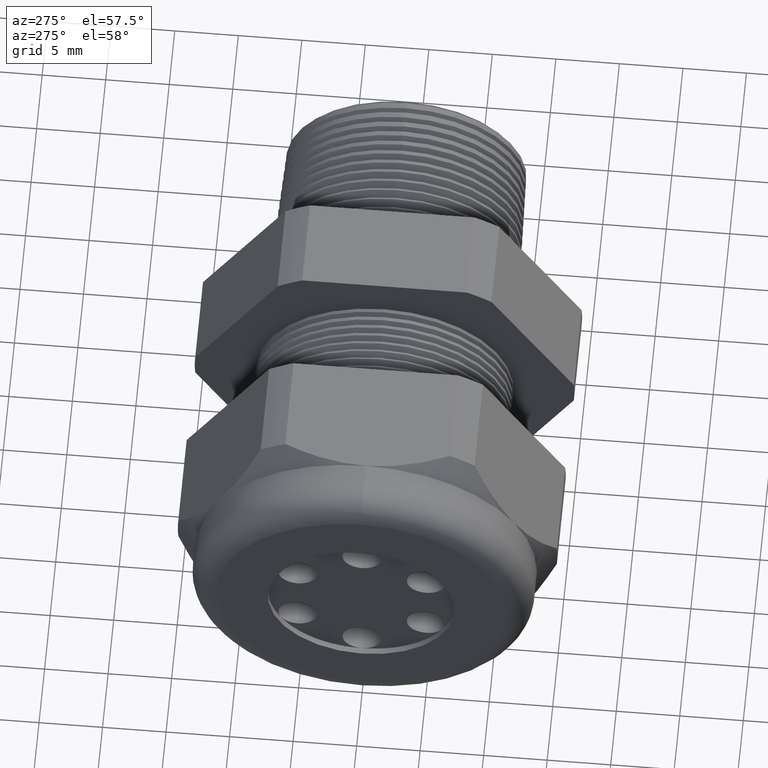
[diagram: clean part render]
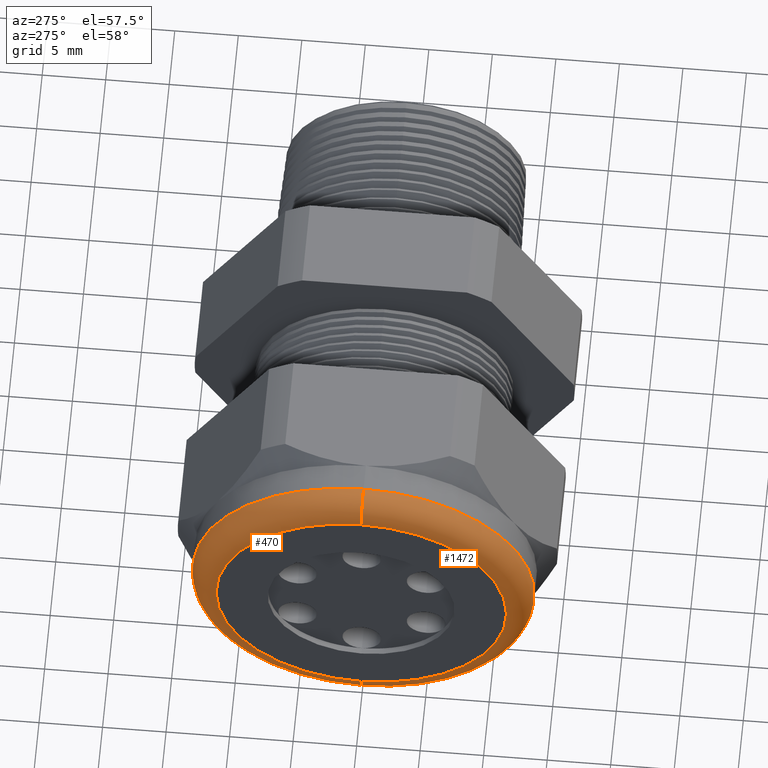
[diagram: same view with one multi-face feature highlighted, each face labeled with its STEP entity id]
A machine part, auxiliary view. The highlighted faces form ONE feature: a constant-radius fillet chain: 2 tangent blend faces with common blend radius 2.032 mm. The faces share edges in the B-rep.
Their STEP definitions:
[1] entity #1472 (Torus):
#474 = VERTEX_POINT ( 'NONE', #2863 ) ;
#529 = VERTEX_POINT ( 'NONE', #3009 ) ;
#531 = EDGE_CURVE ( 'NONE', #474, #532, #3007, .T. ) ;
#532 = VERTEX_POINT ( 'NONE', #3002 ) ;
#535 = VERTEX_POINT ( 'NONE', #2996 ) ;
#537 = EDGE_CURVE ( 'NONE', #529, #535, #2994, .T. ) ;
#1186 = EDGE_CURVE ( 'NONE', #532, #535, #4312, .T. ) ;
#1200 = EDGE_CURVE ( 'NONE', #529, #474, #4349, .T. ) ;
#1472 = ADVANCED_FACE ( 'NONE', ( #4783 ), #4782, .T. ) ;
#1473 = EDGE_LOOP ( 'NONE', ( #1525, #1526, #1527, #1528 ) ) ;
#1525 = ORIENTED_EDGE ( 'NONE', *, *, #531, .F. ) ;
#1526 = ORIENTED_EDGE ( 'NONE', *, *, #1200, .F. ) ;
#1527 = ORIENTED_EDGE ( 'NONE', *, *, #537, .T. ) ;
#1528 = ORIENTED_EDGE ( 'NONE', *, *, #1186, .F. ) ;
#2863 = CARTESIAN_POINT ( 'NONE',  ( -1.330000000000000100, 0.0000000000000000000, -0.5300000000000001400 ) ) ;
#2990 = DIRECTION ( 'NONE',  ( 0.0000000000000000000, 0.0000000000000000000, -1.000000000000000000 ) ) ;
#2991 = DIRECTION ( 'NONE',  ( 0.0000000000000000000, -1.000000000000000000, 0.0000000000000000000 ) ) ;
#2992 = CARTESIAN_POINT ( 'NONE',  ( -1.330000000000000100, 0.0000000000000000000, 0.4500000000000001200 ) ) ;
#2993 = AXIS2_PLACEMENT_3D ( 'NONE', #2992, #2991, #2990 ) ;
#2994 = CIRCLE ( 'NONE', #2993, 0.07999999999999996000 ) ;
#2996 = CARTESIAN_POINT ( 'NONE',  ( -1.409999999999999900, 0.0000000000000000000, 0.4500000000000001200 ) ) ;
#3002 = CARTESIAN_POINT ( 'NONE',  ( -1.409999999999999900, 6.000769315822032200E-017, -0.4500000000000001200 ) ) ;
#3003 = DIRECTION ( 'NONE',  ( 0.0000000000000000000, -1.224646799147353900E-016, 1.000000000000000000 ) ) ;
#3004 = DIRECTION ( 'NONE',  ( 0.0000000000000000000, 1.000000000000000000, 1.224646799147353200E-016 ) ) ;
#3005 = CARTESIAN_POINT ( 'NONE',  ( -1.330000000000000100, 5.510910596163090800E-017, -0.4500000000000001200 ) ) ;
#3006 = AXIS2_PLACEMENT_3D ( 'NONE', #3005, #3004, #3003 ) ;
#3007 = CIRCLE ( 'NONE', #3006, 0.07999999999999996000 ) ;
#3009 = CARTESIAN_POINT ( 'NONE',  ( -1.330000000000000100, 6.490628035480972400E-017, 0.5300000000000001400 ) ) ;
#4308 = DIRECTION ( 'NONE',  ( 0.0000000000000000000, 0.0000000000000000000, 1.000000000000000000 ) ) ;
#4309 = DIRECTION ( 'NONE',  ( -1.000000000000000000, 0.0000000000000000000, 0.0000000000000000000 ) ) ;
#4310 = CARTESIAN_POINT ( 'NONE',  ( -1.409999999999999900, 0.0000000000000000000, 0.0000000000000000000 ) ) ;
#4311 = AXIS2_PLACEMENT_3D ( 'NONE', #4310, #4309, #4308 ) ;
#4312 = CIRCLE ( 'NONE', #4311, 0.4500000000000001200 ) ;
#4346 = DIRECTION ( 'NONE',  ( 0.0000000000000000000, 0.0000000000000000000, 1.000000000000000000 ) ) ;
#4347 = DIRECTION ( 'NONE',  ( 1.000000000000000000, 0.0000000000000000000, 0.0000000000000000000 ) ) ;
#4348 = AXIS2_PLACEMENT_3D ( 'NONE', #4354, #4347, #4346 ) ;
#4349 = CIRCLE ( 'NONE', #4348, 0.5300000000000001400 ) ;
#4354 = CARTESIAN_POINT ( 'NONE',  ( -1.330000000000000100, 0.0000000000000000000, 0.0000000000000000000 ) ) ;
#4778 = DIRECTION ( 'NONE',  ( 0.0000000000000000000, 0.0000000000000000000, 1.000000000000000000 ) ) ;
#4779 = DIRECTION ( 'NONE',  ( -1.000000000000000000, 0.0000000000000000000, 0.0000000000000000000 ) ) ;
#4780 = CARTESIAN_POINT ( 'NONE',  ( -1.330000000000000100, 0.0000000000000000000, 0.0000000000000000000 ) ) ;
#4781 = AXIS2_PLACEMENT_3D ( 'NONE', #4780, #4779, #4778 ) ;
#4782 = TOROIDAL_SURFACE ( 'NONE', #4781, 0.4500000000000001200, 0.08000000000000000200 ) ;
#4783 = FACE_OUTER_BOUND ( 'NONE', #1473, .T. ) ;
[2] entity #470 (Torus):
#470 = ADVANCED_FACE ( 'NONE', ( #2874 ), #2872, .T. ) ;
#471 = EDGE_LOOP ( 'NONE', ( #472, #530, #533, #536 ) ) ;
#472 = ORIENTED_EDGE ( 'NONE', *, *, #473, .F. ) ;
#473 = EDGE_CURVE ( 'NONE', #474, #529, #2868, .T. ) ;
#474 = VERTEX_POINT ( 'NONE', #2863 ) ;
#529 = VERTEX_POINT ( 'NONE', #3009 ) ;
#530 = ORIENTED_EDGE ( 'NONE', *, *, #531, .T. ) ;
#531 = EDGE_CURVE ( 'NONE', #474, #532, #3007, .T. ) ;
#532 = VERTEX_POINT ( 'NONE', #3002 ) ;
#533 = ORIENTED_EDGE ( 'NONE', *, *, #534, .F. ) ;
#534 = EDGE_CURVE ( 'NONE', #535, #532, #3001, .T. ) ;
#535 = VERTEX_POINT ( 'NONE', #2996 ) ;
#536 = ORIENTED_EDGE ( 'NONE', *, *, #537, .F. ) ;
#537 = EDGE_CURVE ( 'NONE', #529, #535, #2994, .T. ) ;
#2863 = CARTESIAN_POINT ( 'NONE',  ( -1.330000000000000100, 0.0000000000000000000, -0.5300000000000001400 ) ) ;
#2864 = DIRECTION ( 'NONE',  ( 0.0000000000000000000, 0.0000000000000000000, 1.000000000000000000 ) ) ;
#2865 = DIRECTION ( 'NONE',  ( 1.000000000000000000, 0.0000000000000000000, 0.0000000000000000000 ) ) ;
#2866 = CARTESIAN_POINT ( 'NONE',  ( -1.330000000000000100, 0.0000000000000000000, 0.0000000000000000000 ) ) ;
#2867 = AXIS2_PLACEMENT_3D ( 'NONE', #2866, #2865, #2864 ) ;
#2868 = CIRCLE ( 'NONE', #2867, 0.5300000000000001400 ) ;
#2869 = DIRECTION ( 'NONE',  ( 0.0000000000000000000, 0.0000000000000000000, 1.000000000000000000 ) ) ;
#2870 = DIRECTION ( 'NONE',  ( -1.000000000000000000, 0.0000000000000000000, 0.0000000000000000000 ) ) ;
#2871 = AXIS2_PLACEMENT_3D ( 'NONE', #2873, #2870, #2869 ) ;
#2872 = TOROIDAL_SURFACE ( 'NONE', #2871, 0.4500000000000001200, 0.08000000000000000200 ) ;
#2873 = CARTESIAN_POINT ( 'NONE',  ( -1.330000000000000100, 0.0000000000000000000, 0.0000000000000000000 ) ) ;
#2874 = FACE_OUTER_BOUND ( 'NONE', #471, .T. ) ;
#2990 = DIRECTION ( 'NONE',  ( 0.0000000000000000000, 0.0000000000000000000, -1.000000000000000000 ) ) ;
#2991 = DIRECTION ( 'NONE',  ( 0.0000000000000000000, -1.000000000000000000, 0.0000000000000000000 ) ) ;
#2992 = CARTESIAN_POINT ( 'NONE',  ( -1.330000000000000100, 0.0000000000000000000, 0.4500000000000001200 ) ) ;
#2993 = AXIS2_PLACEMENT_3D ( 'NONE', #2992, #2991, #2990 ) ;
#2994 = CIRCLE ( 'NONE', #2993, 0.07999999999999996000 ) ;
#2996 = CARTESIAN_POINT ( 'NONE',  ( -1.409999999999999900, 0.0000000000000000000, 0.4500000000000001200 ) ) ;
#2997 = DIRECTION ( 'NONE',  ( 0.0000000000000000000, 0.0000000000000000000, 1.000000000000000000 ) ) ;
#2998 = DIRECTION ( 'NONE',  ( -1.000000000000000000, 0.0000000000000000000, 0.0000000000000000000 ) ) ;
#2999 = CARTESIAN_POINT ( 'NONE',  ( -1.409999999999999900, 0.0000000000000000000, 0.0000000000000000000 ) ) ;
#3000 = AXIS2_PLACEMENT_3D ( 'NONE', #2999, #2998, #2997 ) ;
#3001 = CIRCLE ( 'NONE', #3000, 0.4500000000000001200 ) ;
#3002 = CARTESIAN_POINT ( 'NONE',  ( -1.409999999999999900, 6.000769315822032200E-017, -0.4500000000000001200 ) ) ;
#3003 = DIRECTION ( 'NONE',  ( 0.0000000000000000000, -1.224646799147353900E-016, 1.000000000000000000 ) ) ;
#3004 = DIRECTION ( 'NONE',  ( 0.0000000000000000000, 1.000000000000000000, 1.224646799147353200E-016 ) ) ;
#3005 = CARTESIAN_POINT ( 'NONE',  ( -1.330000000000000100, 5.510910596163090800E-017, -0.4500000000000001200 ) ) ;
#3006 = AXIS2_PLACEMENT_3D ( 'NONE', #3005, #3004, #3003 ) ;
#3007 = CIRCLE ( 'NONE', #3006, 0.07999999999999996000 ) ;
#3009 = CARTESIAN_POINT ( 'NONE',  ( -1.330000000000000100, 6.490628035480972400E-017, 0.5300000000000001400 ) ) ;